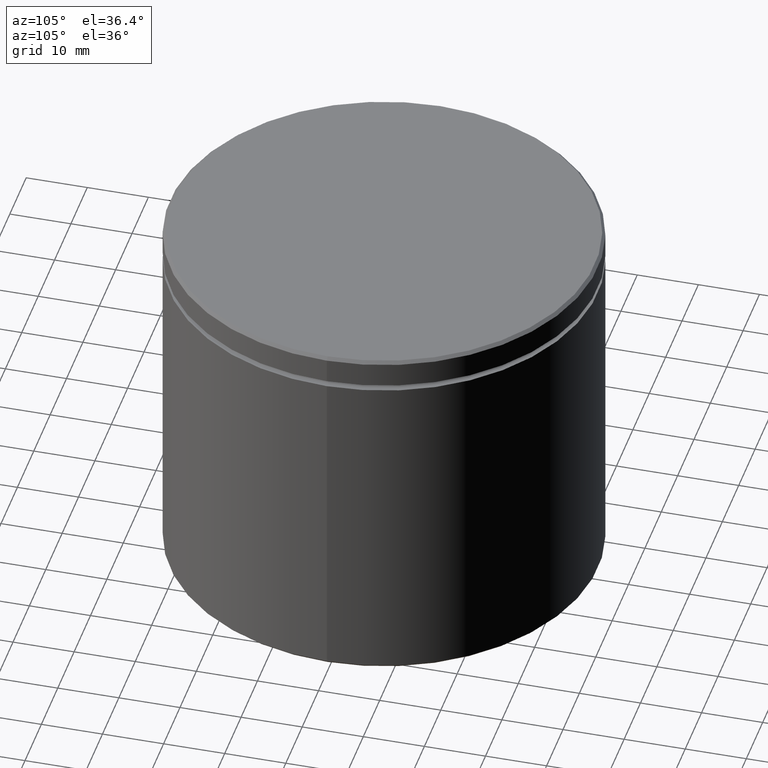
[diagram: clean part render]
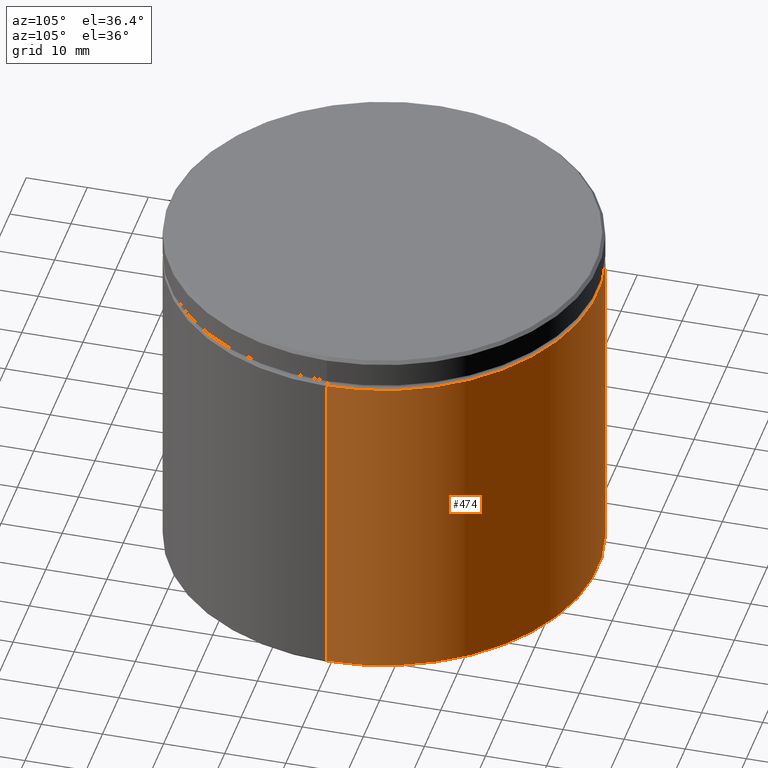
[diagram: same view with one face highlighted and labeled with its STEP entity id]
A machine part, auxiliary view. The second image highlights one B-rep face of the part: STEP entity #474.
In plain terms, the highlighted cylindrical surface (partial cylindrical patch) has radius 35 mm, axis along (-0, -0, 1).
Its self-contained STEP definition (entity closure, byte-faithful):
#41 = VERTEX_POINT ( 'NONE', #322 ) ;
#45 = DIRECTION ( 'NONE',  ( -0.000000000000000000, -0.000000000000000000, 1.000000000000000000 ) ) ;
#55 = VERTEX_POINT ( 'NONE', #546 ) ;
#93 = CYLINDRICAL_SURFACE ( 'NONE', #204, 35.00000000000000000 ) ;
#95 = CARTESIAN_POINT ( 'NONE',  ( 35.00000000000000000, 0.000000000000000000, -5.500000000000000000 ) ) ;
#114 = ORIENTED_EDGE ( 'NONE', *, *, #521, .F. ) ;
#121 = DIRECTION ( 'NONE',  ( -0.000000000000000000, -0.000000000000000000, 1.000000000000000000 ) ) ;
#130 = LINE ( 'NONE', #190, #195 ) ;
#138 = ORIENTED_EDGE ( 'NONE', *, *, #502, .F. ) ;
#145 = VERTEX_POINT ( 'NONE', #95 ) ;
#149 = LINE ( 'NONE', #554, #544 ) ;
#190 = CARTESIAN_POINT ( 'NONE',  ( -35.00000000000000000, 4.286263797015736496E-15, 0.000000000000000000 ) ) ;
#195 = VECTOR ( 'NONE', #45, 1000.000000000000000 ) ;
#204 = AXIS2_PLACEMENT_3D ( 'NONE', #227, #353, #215 ) ;
#205 = CARTESIAN_POINT ( 'NONE',  ( 0.000000000000000000, 0.000000000000000000, -59.50000000000001421 ) ) ;
#215 = DIRECTION ( 'NONE',  ( 1.000000000000000000, 0.000000000000000000, 0.000000000000000000 ) ) ;
#219 = CARTESIAN_POINT ( 'NONE',  ( 0.000000000000000000, 0.000000000000000000, -5.500000000000000000 ) ) ;
#227 = CARTESIAN_POINT ( 'NONE',  ( 0.000000000000000000, 0.000000000000000000, 0.000000000000000000 ) ) ;
#255 = ORIENTED_EDGE ( 'NONE', *, *, #468, .T. ) ;
#322 = CARTESIAN_POINT ( 'NONE',  ( -35.00000000000000000, 4.286263797015736496E-15, -5.500000000000000000 ) ) ;
#326 = CIRCLE ( 'NONE', #371, 35.00000000000000000 ) ;
#334 = AXIS2_PLACEMENT_3D ( 'NONE', #205, #378, #469 ) ;
#346 = DIRECTION ( 'NONE',  ( -0.000000000000000000, -0.000000000000000000, 1.000000000000000000 ) ) ;
#353 = DIRECTION ( 'NONE',  ( -0.000000000000000000, -0.000000000000000000, 1.000000000000000000 ) ) ;
#356 = CARTESIAN_POINT ( 'NONE',  ( -35.00000000000000000, 4.286263797015736496E-15, -59.50000000000001421 ) ) ;
#371 = AXIS2_PLACEMENT_3D ( 'NONE', #219, #346, #525 ) ;
#378 = DIRECTION ( 'NONE',  ( -0.000000000000000000, -0.000000000000000000, 1.000000000000000000 ) ) ;
#458 = VERTEX_POINT ( 'NONE', #356 ) ;
#468 = EDGE_CURVE ( 'NONE', #458, #41, #130, .T. ) ;
#469 = DIRECTION ( 'NONE',  ( -1.000000000000000000, 0.000000000000000000, 0.000000000000000000 ) ) ;
#474 = ADVANCED_FACE ( 'NONE', ( #481 ), #93, .T. ) ;
#481 = FACE_OUTER_BOUND ( 'NONE', #540, .T. ) ;
#483 = ORIENTED_EDGE ( 'NONE', *, *, #564, .T. ) ;
#502 = EDGE_CURVE ( 'NONE', #145, #41, #326, .T. ) ;
#520 = CIRCLE ( 'NONE', #334, 35.00000000000000000 ) ;
#521 = EDGE_CURVE ( 'NONE', #55, #145, #149, .T. ) ;
#525 = DIRECTION ( 'NONE',  ( 1.000000000000000000, 0.000000000000000000, 0.000000000000000000 ) ) ;
#540 = EDGE_LOOP ( 'NONE', ( #483, #255, #138, #114 ) ) ;
#544 = VECTOR ( 'NONE', #121, 1000.000000000000000 ) ;
#546 = CARTESIAN_POINT ( 'NONE',  ( 35.00000000000000000, 0.000000000000000000, -59.50000000000001421 ) ) ;
#554 = CARTESIAN_POINT ( 'NONE',  ( 35.00000000000000000, 0.000000000000000000, 0.000000000000000000 ) ) ;
#564 = EDGE_CURVE ( 'NONE', #55, #458, #520, .T. ) ;